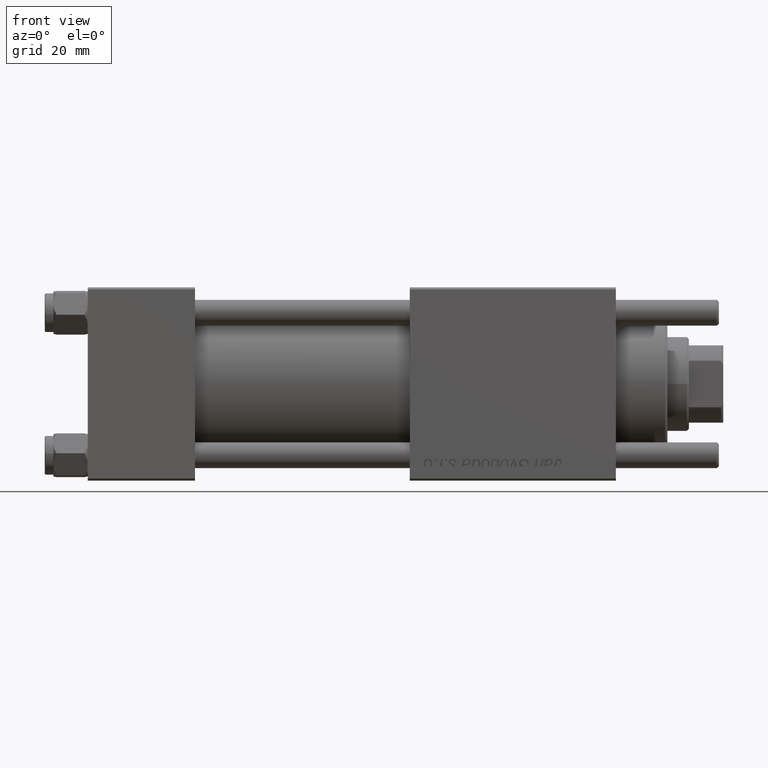
[diagram: clean part render]
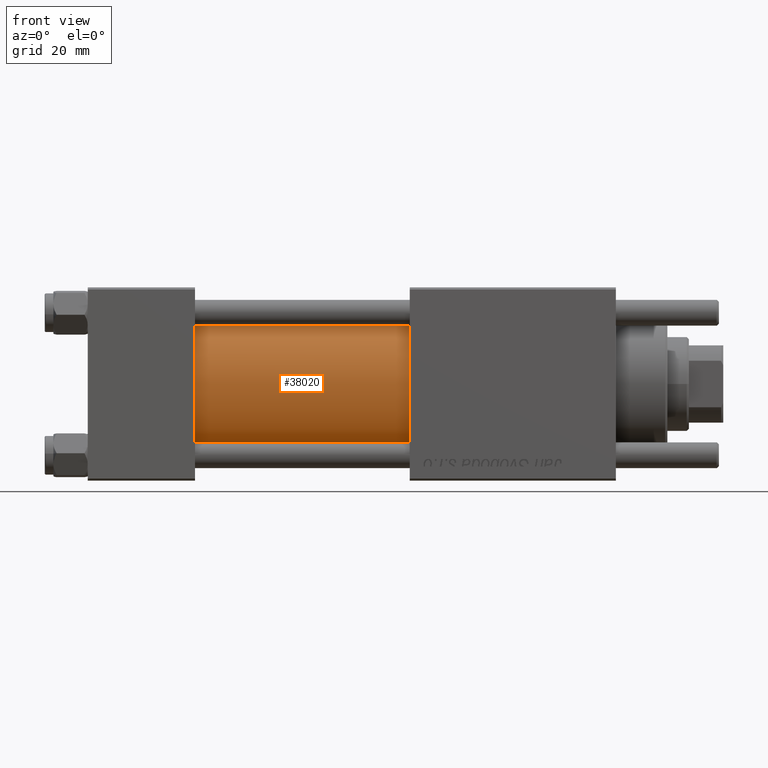
[diagram: same view with one face highlighted and labeled with its STEP entity id]
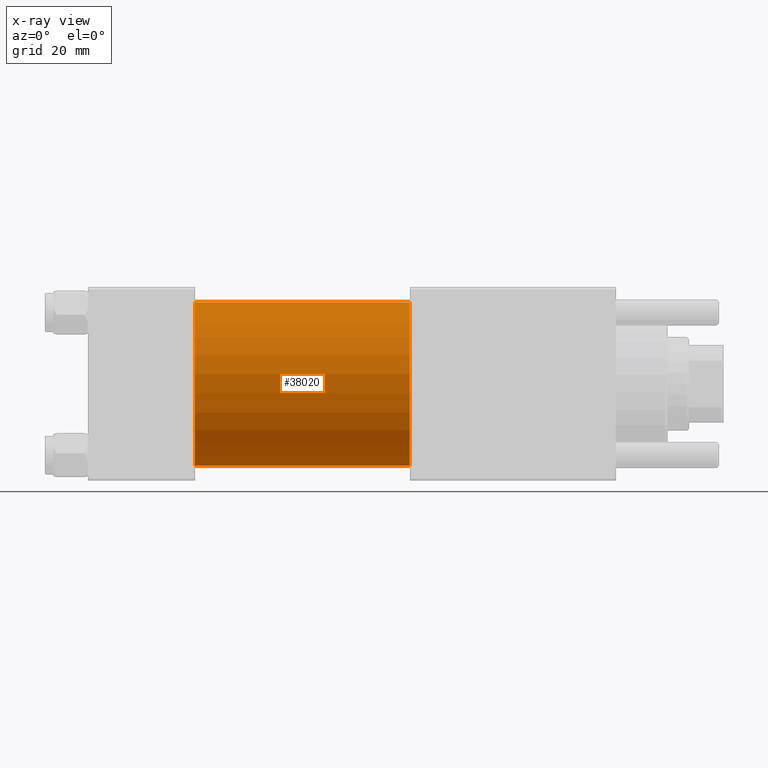
[diagram: x-ray of the same camera — body ghosted, the highlighted face saturated]
A machine part, front view. The second image highlights one B-rep face of the part: STEP entity #38020.
The next image is the same camera in x-ray: the body ghosted, the highlighted face saturated — about 0% of this face is hidden behind the body in this view.
In plain terms, the highlighted cylindrical surface (partial cylindrical patch) has radius 19 mm, axis along (-1, -0, -0).
Its self-contained STEP definition (entity closure, byte-faithful):
#146 = AXIS2_PLACEMENT_3D ( 'NONE', #36586, #22209, #10435 ) ;
#1031 = EDGE_CURVE ( 'NONE', #52614, #28288, #13903, .T. ) ;
#3657 = EDGE_CURVE ( 'NONE', #28288, #34368, #32224, .T. ) ;
#5214 = CYLINDRICAL_SURFACE ( 'NONE', #40984, 19.00000000000000000 ) ;
#6480 = EDGE_CURVE ( 'NONE', #8580, #34368, #52243, .T. ) ;
#8580 = VERTEX_POINT ( 'NONE', #29442 ) ;
#8650 = DIRECTION ( 'NONE',  ( -1.000000000000000000, -0.000000000000000000, -0.000000000000000000 ) ) ;
#9601 = CARTESIAN_POINT ( 'NONE',  ( 25.00000000000000000, -2.602085213965210642E-15, 0.000000000000000000 ) ) ;
#10391 = CARTESIAN_POINT ( 'NONE',  ( 75.00000000000001421, -2.752562955852396712E-16, -19.00000000000000000 ) ) ;
#10435 = DIRECTION ( 'NONE',  ( 0.000000000000000000, 0.000000000000000000, -1.000000000000000000 ) ) ;
#10908 = CARTESIAN_POINT ( 'NONE',  ( 75.00000000000001421, -2.752562955852396712E-16, -19.00000000000000000 ) ) ;
#13903 = CIRCLE ( 'NONE', #146, 19.00000000000000000 ) ;
#14722 = CARTESIAN_POINT ( 'NONE',  ( 75.00000000000001421, -2.602085213965210642E-15, 19.00000000000000000 ) ) ;
#16157 = ORIENTED_EDGE ( 'NONE', *, *, #51612, .T. ) ;
#18003 = ORIENTED_EDGE ( 'NONE', *, *, #3657, .F. ) ;
#21042 = AXIS2_PLACEMENT_3D ( 'NONE', #9601, #27110, #44649 ) ;
#21859 = DIRECTION ( 'NONE',  ( 0.000000000000000000, 0.000000000000000000, 1.000000000000000000 ) ) ;
#22209 = DIRECTION ( 'NONE',  ( 1.000000000000000000, 0.000000000000000000, 0.000000000000000000 ) ) ;
#23980 = ORIENTED_EDGE ( 'NONE', *, *, #6480, .T. ) ;
#27110 = DIRECTION ( 'NONE',  ( 1.000000000000000000, -0.000000000000000000, 0.000000000000000000 ) ) ;
#27310 = FACE_OUTER_BOUND ( 'NONE', #36856, .T. ) ;
#27900 = DIRECTION ( 'NONE',  ( -1.000000000000000000, -0.000000000000000000, -0.000000000000000000 ) ) ;
#28288 = VERTEX_POINT ( 'NONE', #10908 ) ;
#29442 = CARTESIAN_POINT ( 'NONE',  ( 25.00000000000000000, -2.602085213965210642E-15, 19.00000000000000000 ) ) ;
#32224 = LINE ( 'NONE', #10391, #34173 ) ;
#32255 = LINE ( 'NONE', #14722, #42727 ) ;
#34173 = VECTOR ( 'NONE', #27900, 1000.000000000000000 ) ;
#34368 = VERTEX_POINT ( 'NONE', #41457 ) ;
#36072 = CARTESIAN_POINT ( 'NONE',  ( 75.00000000000001421, -2.602085213965210642E-15, 19.00000000000000000 ) ) ;
#36586 = CARTESIAN_POINT ( 'NONE',  ( 75.00000000000001421, -2.602085213965210642E-15, 0.000000000000000000 ) ) ;
#36856 = EDGE_LOOP ( 'NONE', ( #18003, #41449, #16157, #23980 ) ) ;
#38020 = ADVANCED_FACE ( 'NONE', ( #27310 ), #5214, .T. ) ;
#40984 = AXIS2_PLACEMENT_3D ( 'NONE', #48296, #8650, #21859 ) ;
#41449 = ORIENTED_EDGE ( 'NONE', *, *, #1031, .F. ) ;
#41457 = CARTESIAN_POINT ( 'NONE',  ( 25.00000000000000000, -2.752562955852396712E-16, -19.00000000000000000 ) ) ;
#42727 = VECTOR ( 'NONE', #55216, 1000.000000000000000 ) ;
#44649 = DIRECTION ( 'NONE',  ( 0.000000000000000000, 0.000000000000000000, 1.000000000000000000 ) ) ;
#48296 = CARTESIAN_POINT ( 'NONE',  ( 75.00000000000001421, -2.602085213965210642E-15, 0.000000000000000000 ) ) ;
#51612 = EDGE_CURVE ( 'NONE', #52614, #8580, #32255, .T. ) ;
#52243 = CIRCLE ( 'NONE', #21042, 19.00000000000000000 ) ;
#52614 = VERTEX_POINT ( 'NONE', #36072 ) ;
#55216 = DIRECTION ( 'NONE',  ( -1.000000000000000000, -0.000000000000000000, -0.000000000000000000 ) ) ;